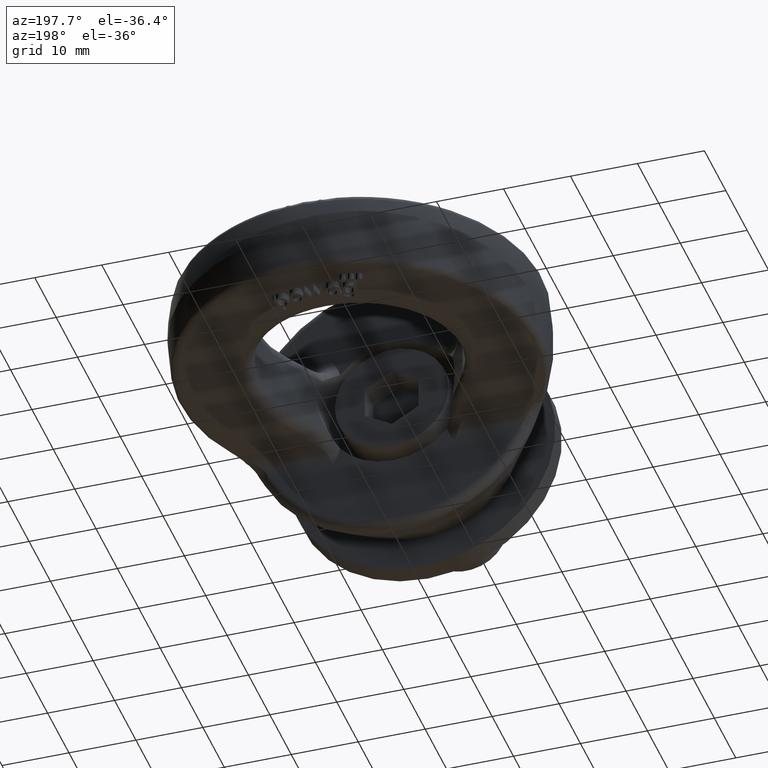
[diagram: clean part render]
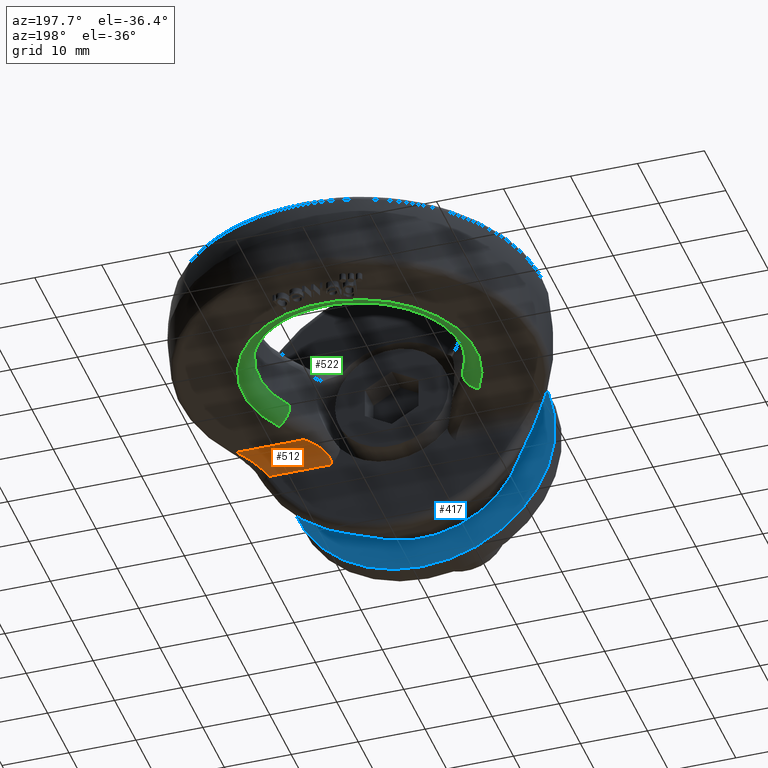
[diagram: same view with three faces highlighted in distinct colors, each labeled with its STEP entity id]
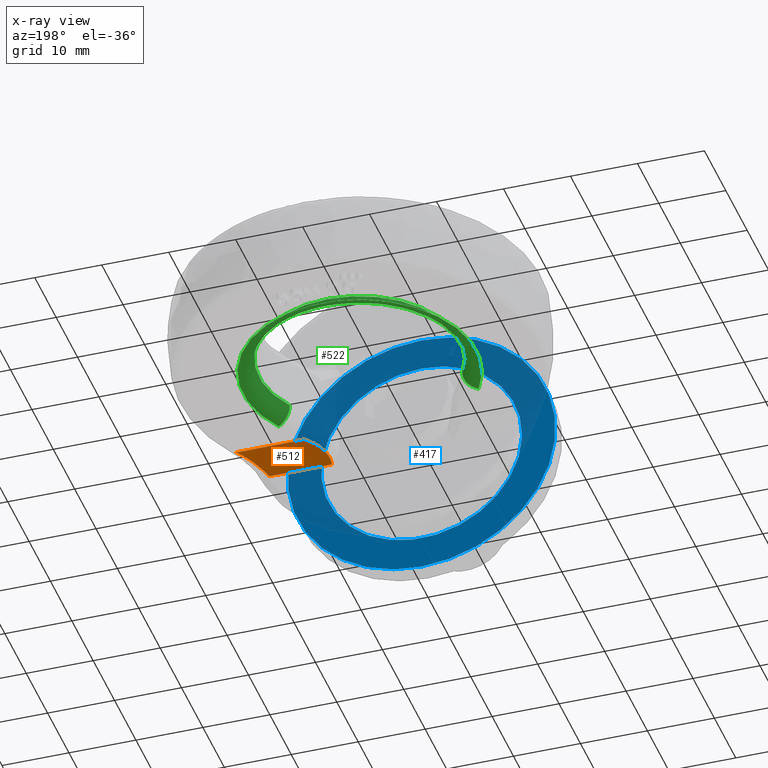
[diagram: x-ray of the same camera — body ghosted, the three highlighted faces saturated]
A machine part, auxiliary view with three faces highlighted in distinct colors.
The next image is the same camera in x-ray (body ghosted, the three faces saturated) — at least one of them is partly hidden behind the body in this view.
Their STEP definitions:

[orange] entity #512 — the highlighted cylindrical surface (edge-blend (fillet) strip) has radius 3 mm, axis along (1, -0, 0).
#223=ELLIPSE('',#3465,4.40740772671821,3.);
#237=CYLINDRICAL_SURFACE('',#3466,3.);
#332=FACE_OUTER_BOUND('',#943,.T.);
#512=ADVANCED_FACE('',(#332),#237,.F.);
#943=EDGE_LOOP('',(#2012,#2013,#2014,#2015,#2016));
#1158=LINE('',#5763,#1378);
#1167=LINE('',#5880,#1387);
#1378=VECTOR('',#3920,1.);
#1387=VECTOR('',#3931,1.);
#2012=ORIENTED_EDGE('',*,*,#2960,.F.);
#2013=ORIENTED_EDGE('',*,*,#2964,.T.);
#2014=ORIENTED_EDGE('',*,*,#2942,.F.);
#2015=ORIENTED_EDGE('',*,*,#2965,.T.);
#2016=ORIENTED_EDGE('',*,*,#2966,.T.);
#2567=VERTEX_POINT('',#5762);
#2568=VERTEX_POINT('',#5764);
#2584=VERTEX_POINT('',#5879);
#2585=VERTEX_POINT('',#5881);
#2588=VERTEX_POINT('',#5896);
#2942=EDGE_CURVE('',#2567,#2568,#1158,.T.);
#2960=EDGE_CURVE('',#2584,#2585,#1167,.T.);
#2964=EDGE_CURVE('',#2584,#2568,#223,.T.);
#2965=EDGE_CURVE('',#2567,#2588,#3249,.T.);
#2966=EDGE_CURVE('',#2588,#2585,#3250,.T.);
#3249=B_SPLINE_CURVE_WITH_KNOTS('',3,(#5892,#5893,#5894,#5895),
 .UNSPECIFIED.,.F.,.F.,(4,4),(0.,1.),.UNSPECIFIED.);
#3250=B_SPLINE_CURVE_WITH_KNOTS('',3,(#5897,#5898,#5899,#5900),
 .UNSPECIFIED.,.F.,.F.,(4,4),(0.,1.),.UNSPECIFIED.);
#3465=AXIS2_PLACEMENT_3D('',#5891,#3937,#3938);
#3466=AXIS2_PLACEMENT_3D('',#5901,#3939,#3940);
#3920=DIRECTION('',(-1.,4.38613491528481E-16,-2.34291072916505E-15));
#3931=DIRECTION('',(1.,-4.38613491528481E-16,2.34291072916505E-15));
#3937=DIRECTION('',(-0.680672219593766,0.732588103557037,-1.59475424633082E-15));
#3938=DIRECTION('',(0.732588103557037,0.680672219593766,1.71638852788246E-15));
#3939=DIRECTION('',(1.,-4.38613491528481E-16,2.34291072916505E-15));
#3940=DIRECTION('',(-5.78241158658936E-16,-1.,0.));
#5762=CARTESIAN_POINT('',(22.6362541070735,19.,-5.99999999999995));
#5763=CARTESIAN_POINT('',(-55.,19.,-6.00000000000014));
#5764=CARTESIAN_POINT('',(12.5001206894794,19.,-5.99999999999998));
#5879=CARTESIAN_POINT('',(9.27130622136027,16.,-8.99999999999999));
#5880=CARTESIAN_POINT('',(7.91003245217855,16.,-8.99999999999999));
#5881=CARTESIAN_POINT('',(18.5937741275882,16.,-8.99999999999996));
#5891=CARTESIAN_POINT('',(12.5001206894794,19.,-8.99999999999998));
#5892=CARTESIAN_POINT('',(22.6362541070735,19.,-5.99999999999995));
#5893=CARTESIAN_POINT('',(22.4447901337077,18.7523413055167,-5.99999999999995));
#5894=CARTESIAN_POINT('',(22.2403115176209,18.5131677808478,-6.03070109604189));
#5895=CARTESIAN_POINT('',(22.0299506576707,18.2879695935804,-6.08572261094894));
#5896=CARTESIAN_POINT('',(22.0299506576707,18.2879695935804,-6.08572261094894));
#5897=CARTESIAN_POINT('',(22.0299506576707,18.2879695935804,-6.08572261094894));
#5898=CARTESIAN_POINT('',(20.8400083831767,17.0140974329878,-6.39696124445757));
#5899=CARTESIAN_POINT('',(19.589345848217,16.,-7.5308384364135));
#5900=CARTESIAN_POINT('',(18.5937741275881,16.,-8.99999999999994));
#5901=CARTESIAN_POINT('',(7.91003245217855,19.,-8.99999999999999));

[blue] entity #417 — the highlighted planar face has unit normal (0, -1, 0).
#417=ADVANCED_FACE('',(#758,#759),#600,.F.);
#600=PLANE('',#3378);
#694=CIRCLE('',#3353,15.0000000000001);
#704=CIRCLE('',#3374,20.);
#758=FACE_BOUND('',#827,.T.);
#759=FACE_BOUND('',#828,.T.);
#827=EDGE_LOOP('',(#1567));
#828=EDGE_LOOP('',(#1568));
#1567=ORIENTED_EDGE('',*,*,#2744,.F.);
#1568=ORIENTED_EDGE('',*,*,#2714,.T.);
#2418=VERTEX_POINT('',#4438);
#2444=VERTEX_POINT('',#4523);
#2714=EDGE_CURVE('',#2418,#2418,#694,.T.);
#2744=EDGE_CURVE('',#2444,#2444,#704,.T.);
#3353=AXIS2_PLACEMENT_3D('',#4437,#3578,#3579);
#3374=AXIS2_PLACEMENT_3D('',#4522,#3626,#3627);
#3378=AXIS2_PLACEMENT_3D('',#4528,#3634,#3635);
#3578=DIRECTION('',(0.,-1.,0.));
#3579=DIRECTION('',(0.,0.,1.));
#3626=DIRECTION('',(0.,-1.,0.));
#3627=DIRECTION('',(0.,0.,-1.));
#3634=DIRECTION('',(0.,-1.,0.));
#3635=DIRECTION('',(0.,0.,-1.));
#4437=CARTESIAN_POINT('',(-1.27403500852703E-13,3.,2.58454824747247E-14));
#4438=CARTESIAN_POINT('',(-1.27403500852703E-13,3.,15.0000000000001));
#4522=CARTESIAN_POINT('',(0.,3.,0.));
#4523=CARTESIAN_POINT('',(0.,3.,-20.));
#4528=CARTESIAN_POINT('',(0.,3.,0.));

[green] entity #522 — the highlighted toroidal blend (fillet) surface has major radius 17.4 mm and minor (blend) radius 2.4 mm.
#202=TOROIDAL_SURFACE('',#3481,17.4,2.4);
#342=FACE_OUTER_BOUND('',#953,.T.);
#522=ADVANCED_FACE('',(#342),#202,.T.);
#701=CIRCLE('',#3362,15.);
#727=CIRCLE('',#3460,17.4);
#737=CIRCLE('',#3478,2.4);
#738=CIRCLE('',#3480,2.4);
#953=EDGE_LOOP('',(#2055,#2056,#2057,#2058));
#2055=ORIENTED_EDGE('',*,*,#2977,.T.);
#2056=ORIENTED_EDGE('',*,*,#2938,.F.);
#2057=ORIENTED_EDGE('',*,*,#2978,.F.);
#2058=ORIENTED_EDGE('',*,*,#2730,.F.);
#2431=VERTEX_POINT('',#4492);
#2433=VERTEX_POINT('',#4495);
#2563=VERTEX_POINT('',#5755);
#2564=VERTEX_POINT('',#5756);
#2730=EDGE_CURVE('',#2431,#2433,#701,.T.);
#2938=EDGE_CURVE('',#2563,#2564,#727,.T.);
#2977=EDGE_CURVE('',#2431,#2564,#737,.T.);
#2978=EDGE_CURVE('',#2433,#2563,#738,.T.);
#3362=AXIS2_PLACEMENT_3D('',#4494,#3597,#3598);
#3460=AXIS2_PLACEMENT_3D('',#5754,#3914,#3915);
#3478=AXIS2_PLACEMENT_3D('',#6009,#3963,#3964);
#3480=AXIS2_PLACEMENT_3D('',#6011,#3967,#3968);
#3481=AXIS2_PLACEMENT_3D('',#6012,#3969,#3970);
#3597=DIRECTION('',(2.34291072916505E-15,1.14557210677714E-16,-1.));
#3598=DIRECTION('',(-3.08148791101958E-31,1.,1.15648231731787E-16));
#3914=DIRECTION('',(-2.34291072916505E-15,-1.14557210677714E-16,1.));
#3915=DIRECTION('',(-3.54194012760871E-31,1.,9.969675149292E-17));
#3963=DIRECTION('',(-0.51318793037975,0.858276265611807,-1.07442579049476E-15));
#3964=DIRECTION('',(0.858276265611807,0.51318793037975,1.98770398289009E-15));
#3967=DIRECTION('',(-0.51318793037975,-0.858276265611807,-1.20235350816472E-15));
#3968=DIRECTION('',(-0.858276265611807,0.51318793037975,-1.98770398289009E-15));
#3969=DIRECTION('',(-2.34291072916505E-15,-1.14557210677714E-16,1.));
#3970=DIRECTION('',(-2.3344605386512E-31,1.,1.09515370958132E-16));
#4492=CARTESIAN_POINT('',(-12.8741439841771,24.3021810443037,-3.60000000000003));
#4494=CARTESIAN_POINT('',(8.43447862499418E-15,32.,-3.6));
#4495=CARTESIAN_POINT('',(12.8741439841771,24.3021810443038,-3.59999999999998));
#5754=CARTESIAN_POINT('',(1.40574643749903E-14,32.,-6.));
#5755=CARTESIAN_POINT('',(14.9340070216455,23.0705300113923,-5.99999999999997));
#5756=CARTESIAN_POINT('',(-14.9340070216454,23.0705300113923,-6.00000000000004));
#6009=CARTESIAN_POINT('',(-14.9340070216454,23.0705300113923,-3.60000000000004));
#6011=CARTESIAN_POINT('',(14.9340070216454,23.0705300113924,-3.59999999999997));
#6012=CARTESIAN_POINT('',(8.43447862499418E-15,32.,-3.6));